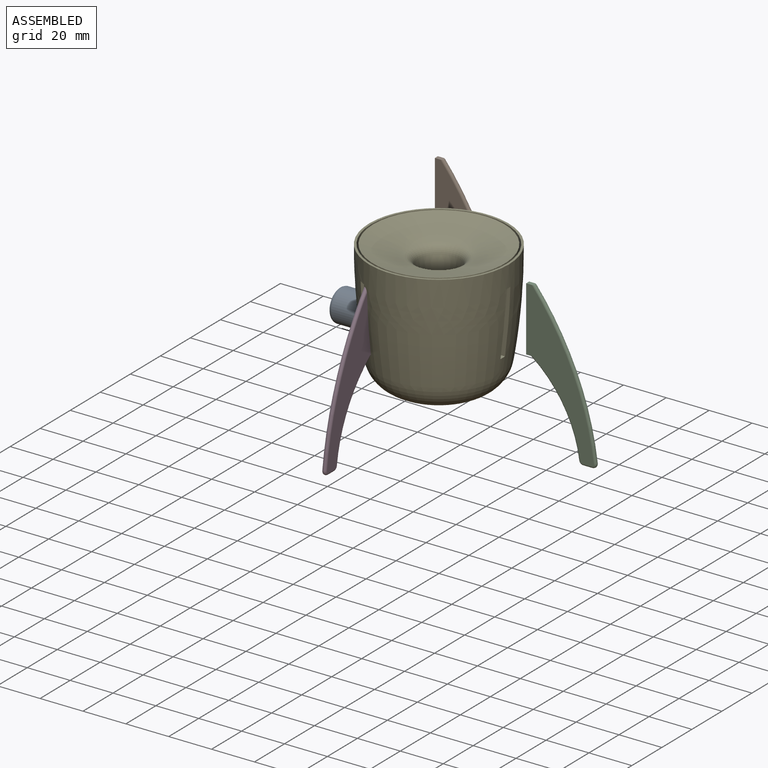
[diagram: assembled view]
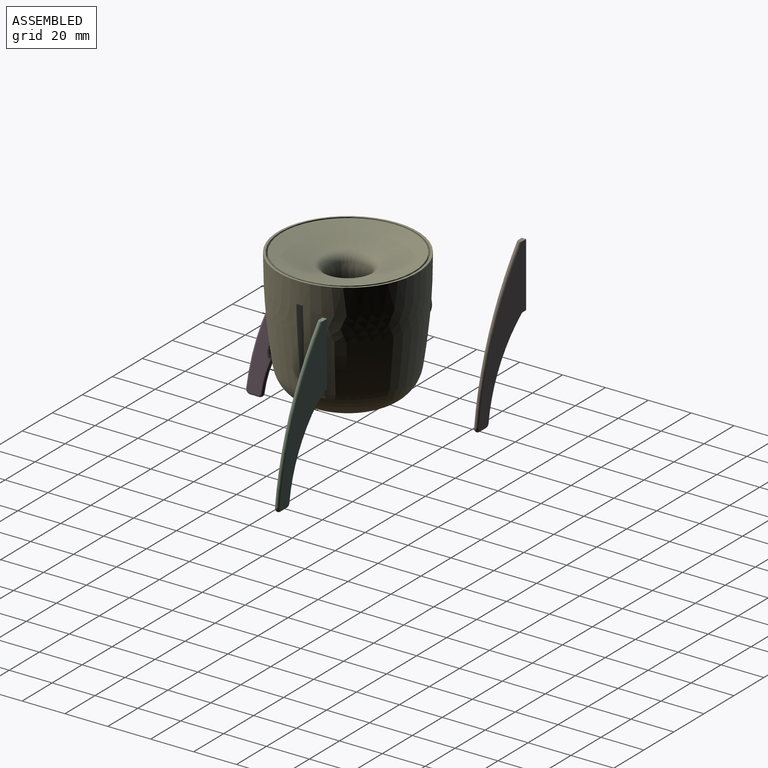
[diagram: assembled view, second angle]
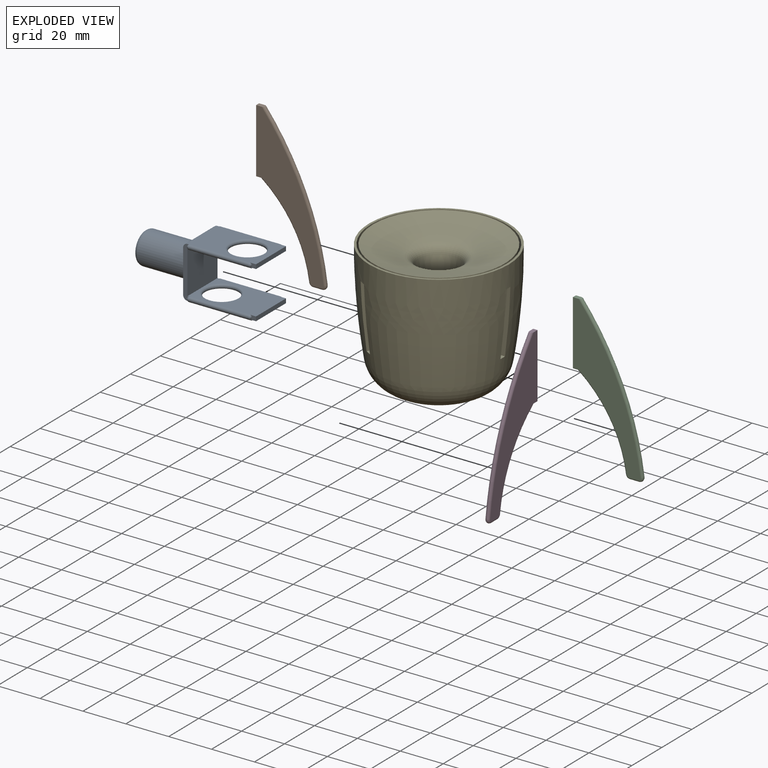
[diagram: exploded view]
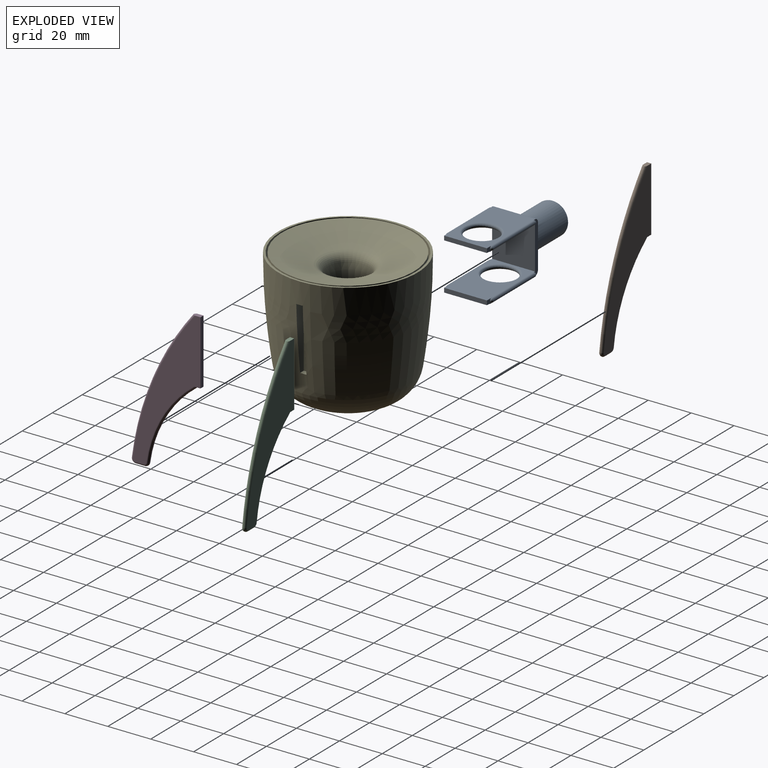
[diagram: exploded view, second angle]
ASSEMBLY  parts=5 mates=2
PART A: 45 faces, bbox 59.5x22.5x25 mm
  f0: plane 3x2mm, normal (0,1,0), area 4.4mm2, adj f4,f7,f9,f24,f30
  f1: plane 24x3mm, normal (0,-1,0), area 47.1mm2, adj f5,f9,f10,f11,f17,f18,f21,f22
  f2: plane 3x2mm, normal (0,1,0), area 4.4mm2, adj f6,f8,f11,f23,f32
  f3: plane 3x2mm, normal (0,-1,0), area 4.4mm2, adj f6,f8,f11,f22,f34
  f4: plane 32.54x20.54mm, normal (0,0,-1), area 353.2mm2, adj f0,f5,f7,f12,f20,f21,f24,f37
  f5: plane 20x20mm, normal (1,0,0), area 399.2mm2, adj f1,f4,f11,f13,f21,f24
  f6: plane 32.54x20.54mm, normal (0,0,-1), area 353.3mm2, adj f2,f3,f8,f18,f19,f22,f23,f39
  f7: plane 20x2mm, normal (1,0,0), area 40mm2, adj f0,f4,f9,f12
  f8: plane 20x2mm, normal (1,0,0), area 40mm2, adj f2,f3,f6,f11
  f9: plane 32x20mm, normal (0,0,1), area 413mm2, adj f0,f1,f7,f12,f13,f17,f20,f27
  f10: plane 20x20mm, normal (-1,0,0), area 223.3mm2, adj f1,f13,f14,f17,f18
  f11: plane 32x20mm, normal (0,0,1), area 413mm2, adj f1,f2,f3,f5,f8,f13,f19,f25
  f12: plane 3x2mm, normal (0,-1,0), area 4.4mm2, adj f4,f7,f9,f21,f36
  f13: plane 24x3mm, normal (0,1,0), area 47.1mm2, adj f5,f9,f10,f11,f17,f18,f23,f24
  f14: cylinder r=7.5mm len=23mm, axis (1,0,0), area 1083.8mm2, adj f10,f16
  f15: plane 11x11mm, normal (-1,0,0), area 95mm2, adj f16
  f16: torus R=5.5mm, axis (-1,0,0), area 133.7mm2, adj f14,f15
  f17: cylinder r=2mm len=20mm, axis (0,1,0), area 62.8mm2, adj f1,f9,f10,f13
  f18: cylinder r=2mm len=20mm, axis (0,1,0), area 63.1mm2, adj f1,f6,f10,f13,f38,f42
  f19: torus R=8.5mm, axis (0,0,1), area 155.2mm2, adj f6,f11
  f20: torus R=8.5mm, axis (0,0,-1), area 155.2mm2, adj f4,f9
  f21: cylinder r=0.5mm len=29.5mm, axis (-1,0,0), area 46.3mm2, adj f1,f4,f5,f12,f27,f44
  f22: cylinder r=0.5mm len=29mm, axis (-1,0,0), area 45.6mm2, adj f1,f3,f6,f25,f41,f43
  f23: cylinder r=0.5mm len=29mm, axis (-1,0,0), area 45.6mm2, adj f2,f6,f13,f26,f39,f40
  f24: cylinder r=0.5mm len=29.5mm, axis (-1,0,0), area 46.3mm2, adj f0,f4,f5,f13,f28,f37
  f25: cylinder r=1mm len=28mm, axis (-1,0,0), area 88mm2, adj f11,f22,f33,f34
  f26: cylinder r=1mm len=28mm, axis (-1,0,0), area 88mm2, adj f11,f23,f31,f32
  f27: cylinder r=1mm len=28mm, axis (-1,0,0), area 88mm2, adj f9,f21,f35,f36
  f28: cylinder r=1mm len=28mm, axis (-1,0,0), area 88mm2, adj f9,f24,f29,f30
  f29: sphere r=1mm, area 3.1mm2, adj f13,f28
  f30: sphere r=1mm, area 3.1mm2, adj f0,f28
  f31: sphere r=1mm, area 3.1mm2, adj f13,f26
  f32: sphere r=1mm, area 3.1mm2, adj f2,f26
  f33: sphere r=1mm, area 3.1mm2, adj f1,f25
  f34: sphere r=1mm, area 3.1mm2, adj f3,f25
  f35: sphere r=1mm, area 3.1mm2, adj f1,f27
  f36: sphere r=1mm, area 3.1mm2, adj f12,f27
  f37: sphere r=0.5mm, area 0.6mm2, adj f4,f24
  f38: cylinder r=0.5mm len=0.5mm, axis (0,0,1), area 0mm2, adj f13,f18,f39
  f39: sphere r=0.5mm, area 0.6mm2, adj f6,f23,f38
  f40: sphere r=0.5mm, area 0.6mm2, adj f6,f23
  f41: sphere r=0.5mm, area 0.6mm2, adj f6,f22,f42
  f42: cylinder r=0.5mm len=0.5mm, axis (0,0,1), area 0mm2, adj f1,f18,f41
  f43: sphere r=0.5mm, area 0.6mm2, adj f6,f22
  f44: sphere r=0.5mm, area 0.6mm2, adj f4,f21
PART B: 10 faces, bbox 43.6x2x77.9 mm
  f0: plane 3.82x2mm, normal (0,0,1), area 7.1mm2, adj f1,f3,f4,f5
  f1: plane 30x2mm, normal (-1,0,0), area 60mm2, adj f0,f2,f3,f4
  f2: plane 3.11x2mm, normal (0,0,-1), area 3.6mm2, adj f1,f3,f4,f9
  f3: plane 69x31.48mm, normal (0,-1,0), area 749.3mm2, adj f0,f1,f2,f5,f6,f7,f8,f9
  f4: plane 69x31.48mm, normal (0,1,0), area 749.3mm2, adj f0,f1,f2,f5,f6,f7,f8,f9
  f5: torus R=135.72mm, axis (0,-1,0), area 234.2mm2, adj f0,f3,f4,f6
  f6: torus R=1mm, axis (0,-1,0), area 8.7mm2, adj f3,f4,f5,f7
  f7: cylinder r=1mm len=4.19mm, axis (-1,0,0), area 13.1mm2, adj f3,f4,f6,f8
  f8: torus R=1mm, axis (0,-1,0), area 7.4mm2, adj f3,f4,f7,f9
  f9: torus R=58.21mm, axis (0,-1,0), area 143.3mm2, adj f2,f3,f4,f8
PART C: same geometry as B
PART D: same geometry as B
PART E: 61 faces, bbox 65.1x65.1x60.1 mm
  f0: plane 8.03x0.59mm, normal (0,0,-1), area 3.2mm2, adj f7,f49
  f1: plane 27.75x24.66mm, normal (0,0,-1), area 300.8mm2, adj f7,f26,f50,f51,f52,f53,f54,f55
  f2: revolved ~64.31x64.31mm, area 18143.9mm2, adj f6,f7,f25,f32,f33,f34,f35,f37
  f3: cylinder r=6.5mm len=13mm, axis (0,0,-1), area 277.5mm2, adj f26,f27
  f4: plane 63x63mm, normal (0,0,1), area 146.7mm2, adj f5,f12
  f5: cylinder r=31.5mm len=63mm, axis (0,0,-1), area 1385.4mm2, adj f4,f6
  f6: plane 65x65mm, normal (0,0,1), area 201.1mm2, adj f2,f5
  f7: torus R=13.88mm, axis (0,0,-1), area 3030.5mm2, adj f0,f1,f2,f47,f48,f49,f50,f51
  f8: torus R=26.5mm, axis (0,0,-1), area 227.8mm2, adj f9,f60
  f9: cone r=9.65mm half-angle=15.4deg, axis (0,0,1), area 485.1mm2, adj f8,f10
  f10: torus R=14.47mm, axis (0,0,-1), area 355.1mm2, adj f9,f11
  f11: cone r=30.75mm half-angle=73.9deg, axis (0,0,1), area 2531.6mm2, adj f10,f12
  f12: cylinder r=30.75mm len=61.5mm, axis (0,0,-1), area 1352.5mm2, adj f4,f11
  f13: plane 47.5x23mm, normal (0,0,-1), area 865.5mm2, adj f14,f20,f21,f22,f60
  f14: plane 25.5x23mm, normal (1,0,0), area 385.4mm2, adj f13,f15,f21,f22,f24
  f15: plane 47.5x23mm, normal (0,0,1), area 915.8mm2, adj f14,f16,f21,f22,f27
  f16: plane 23x3.5mm, normal (-1,0,0), area 80.5mm2, adj f15,f17,f21,f22
  f17: plane 34x23mm, normal (0,0,-1), area 605.3mm2, adj f16,f21,f22,f28,f30
  f18: plane 23x16.5mm, normal (-1,0,0), area 379.5mm2, adj f21,f22,f30,f31
  f19: plane 34x23mm, normal (0,0,1), area 605.3mm2, adj f20,f21,f22,f29,f31
  f20: plane 23x3.5mm, normal (-1,0,0), area 80.5mm2, adj f13,f19,f21,f22
  f21: plane 47.5x25.5mm, normal (0,-1,0), area 564.2mm2, adj f13,f14,f15,f16,f17,f18,f19,f20
  f22: plane 47.5x25.5mm, normal (0,1,0), area 564.2mm2, adj f13,f14,f15,f16,f17,f18,f19,f20
  f23: cylinder r=6.5mm len=16.5mm, axis (0,0,-1), area 673.9mm2, adj f28,f29
  f24: cylinder r=8mm len=16mm, axis (1,0,0), area 273.1mm2, adj f14,f25
  f25: bspline ~17.31x17.05mm, area 45mm2, adj f2,f24
  f26: torus R=8.5mm, axis (0,0,-1), area 142.7mm2, adj f1,f3
  f27: torus R=7.5mm, axis (0,0,-1), area 67.7mm2, adj f3,f15
  f28: torus R=7.5mm, axis (0,0,-1), area 67.7mm2, adj f17,f23
  f29: torus R=7.5mm, axis (0,0,1), area 67.7mm2, adj f19,f23
  f30: cylinder r=1mm len=23mm, axis (0,-1,0), area 36.1mm2, adj f17,f18,f21,f22
  f31: cylinder r=1mm len=23mm, axis (0,-1,0), area 36.1mm2, adj f18,f19,f21,f22
  f32: plane 3x2.49mm, normal (0,0,1), area 7.4mm2, adj f2,f34,f35,f36
  f33: plane 5x3mm, normal (0,0,-1), area 15mm2, adj f2,f34,f35,f36
  f34: plane 30.08x5.03mm, normal (0,-1,0), area 118.8mm2, adj f2,f32,f33,f36
  f35: plane 30.08x5.03mm, normal (0,1,0), area 118.8mm2, adj f2,f32,f33,f36
  f36: plane 30x3mm, normal (1,0,0), area 90mm2, adj f32,f33,f34,f35
  f37: plane 3.82x3.62mm, normal (0,0,1), area 7.4mm2, adj f2,f39,f40,f41
  f38: plane 5.8x5.08mm, normal (0,0,-1), area 15mm2, adj f2,f39,f40,f41
  f39: plane 30.04x4.34mm, normal (0.87,0.5,0), area 118.8mm2, adj f2,f37,f38,f41
  f40: plane 30.04x4.34mm, normal (-0.87,-0.5,0), area 118.8mm2, adj f2,f37,f38,f41
  f41: plane 30x2.6mm, normal (-0.5,0.87,0), area 90mm2, adj f37,f38,f39,f40
  f42: plane 3.82x3.62mm, normal (0,0,1), area 7.4mm2, adj f2,f44,f45,f46
  f43: plane 5.8x5.08mm, normal (0,0,-1), area 15mm2, adj f2,f44,f45,f46
  f44: plane 30.04x4.34mm, normal (-0.87,0.5,0), area 118.8mm2, adj f2,f42,f43,f46
  f45: plane 30.04x4.34mm, normal (0.87,-0.5,0), area 118.8mm2, adj f2,f42,f43,f46
  f46: plane 30x2.6mm, normal (-0.5,-0.87,0), area 90mm2, adj f42,f43,f44,f45
  f47: cylinder r=6.44mm len=8mm, axis (0,0,-1), area 80.8mm2, adj f7,f49,f50,f59
  f48: cylinder r=6.44mm len=8mm, axis (0,0,-1), area 80.8mm2, adj f7,f49,f51,f59
  f49: plane 11.8x8.07mm, normal (-1,0,0), area 93.8mm2, adj f0,f7,f47,f48,f59
  f50: plane 8x6.28mm, normal (0,1,0), area 50.2mm2, adj f1,f7,f47,f52,f59
  f51: plane 8x6.28mm, normal (0,-1,0), area 50.2mm2, adj f1,f7,f48,f58,f59
  f52: plane 8x2.3mm, normal (1,0,0), area 18.4mm2, adj f1,f50,f53,f59
  f53: plane 8x6.27mm, normal (0,-1,0), area 50.2mm2, adj f1,f52,f54,f59
  f54: cylinder r=3.94mm len=8mm, axis (0,0,-1), area 51.1mm2, adj f1,f53,f55,f59
  f55: plane 11.73x8mm, normal (1,0,0), area 93.8mm2, adj f1,f54,f56,f59
  f56: cylinder r=3.94mm len=8mm, axis (0,0,-1), area 51.1mm2, adj f1,f55,f57,f59
  f57: plane 8x6.27mm, normal (0,1,0), area 50.2mm2, adj f1,f56,f58,f59
  f58: plane 8x2.3mm, normal (1,0,0), area 18.4mm2, adj f1,f51,f57,f59
  f59: plane 24.6x12.71mm, normal (0,0,-1), area 97.3mm2, adj f47,f48,f49,f50,f51,f52,f53,f54
  f60: torus R=8.5mm, axis (0,0,-1), area 142.7mm2, adj f8,f13
PLACE A t=(-4.7,10,-11.09)mm
PLACE B t=(-67.86,54.53,15.26)mm
PLACE C t=(4.37,12.2,-2.08)mm
PLACE D rot(axis=(0,0,-1),90deg) t=(-13.91,3.94,0)mm
PLACE E at identity fixed
MATE slider E.f24 <-> A.f14  axis (1,0,0) through (-27.07,0,-11.09)mm
MATE fastened E.f43 <-> D.f0  axis (0,0,-1) through (-14.91,-25.83,16.62)mm
